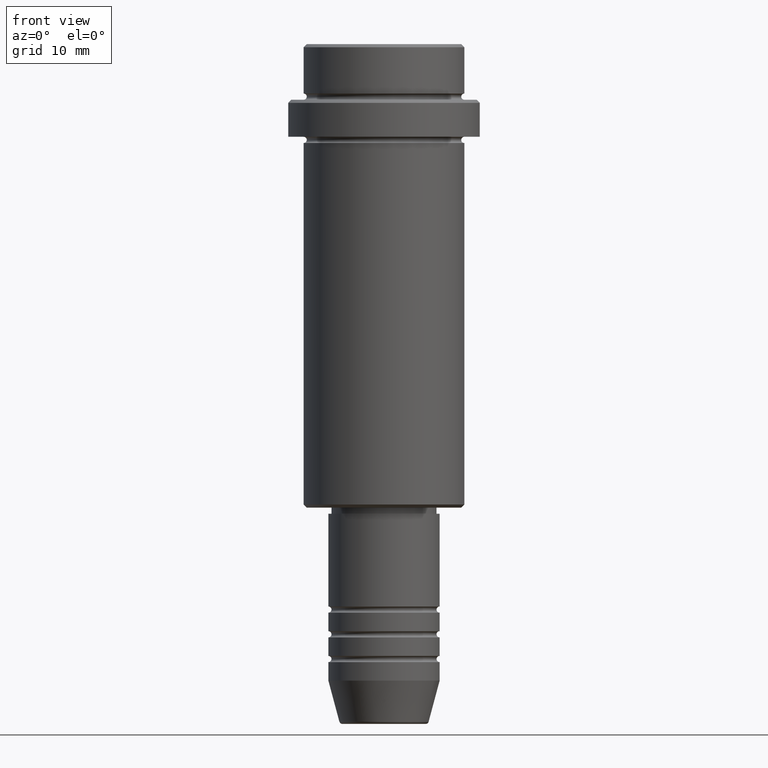
[diagram: clean part render]
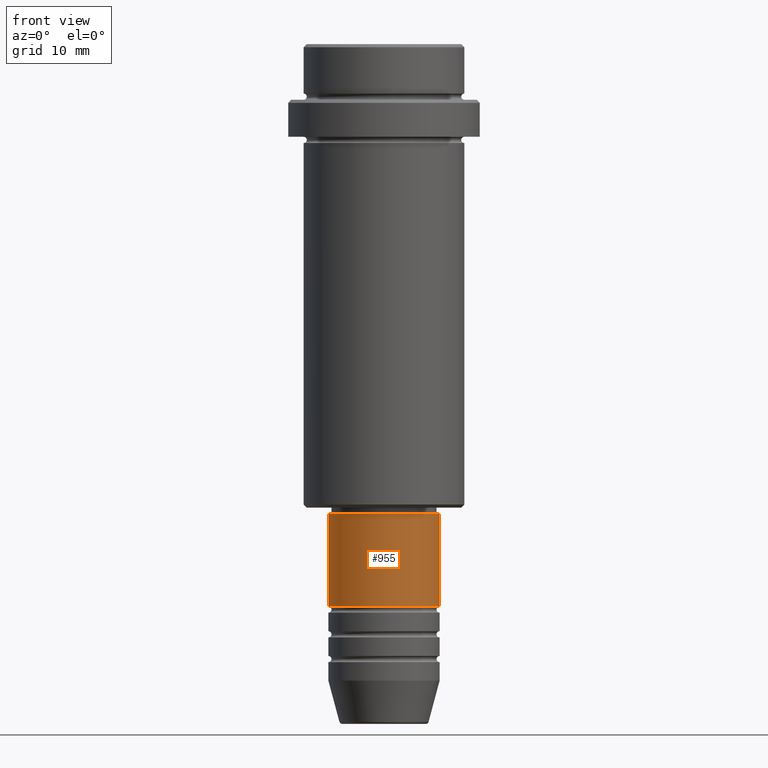
[diagram: same view with one face highlighted and labeled with its STEP entity id]
A machine part, front view. The second image highlights one B-rep face of the part: STEP entity #955.
In plain terms, the highlighted cylindrical surface (partial cylindrical patch) has radius 9 mm, axis along (-0, -0, 1).
Its self-contained STEP definition (entity closure, byte-faithful):
#51 = EDGE_CURVE ( 'NONE', #434, #1263, #91, .T. ) ;
#91 = CIRCLE ( 'NONE', #1049, 9.000000000000000000 ) ;
#103 = CARTESIAN_POINT ( 'NONE',  ( 0.000000000000000000, 0.000000000000000000, 0.000000000000000000 ) ) ;
#142 = CARTESIAN_POINT ( 'NONE',  ( 9.000000000000001776, 0.000000000000000000, -76.00000000000001421 ) ) ;
#165 = ORIENTED_EDGE ( 'NONE', *, *, #1303, .F. ) ;
#183 = CARTESIAN_POINT ( 'NONE',  ( -9.000000000000000000, 1.102182119232617714E-15, -90.99999999999988631 ) ) ;
#204 = VERTEX_POINT ( 'NONE', #1227 ) ;
#268 = VECTOR ( 'NONE', #736, 1000.000000000000000 ) ;
#311 = DIRECTION ( 'NONE',  ( 1.000000000000000000, 0.000000000000000000, 0.000000000000000000 ) ) ;
#398 = CARTESIAN_POINT ( 'NONE',  ( 9.000000000000000000, 0.000000000000000000, -90.99999999999988631 ) ) ;
#412 = VECTOR ( 'NONE', #1052, 1000.000000000000000 ) ;
#428 = DIRECTION ( 'NONE',  ( -0.000000000000000000, -0.000000000000000000, 1.000000000000000000 ) ) ;
#434 = VERTEX_POINT ( 'NONE', #183 ) ;
#436 = DIRECTION ( 'NONE',  ( -0.000000000000000000, -0.000000000000000000, 1.000000000000000000 ) ) ;
#437 = AXIS2_PLACEMENT_3D ( 'NONE', #542, #1004, #1325 ) ;
#447 = CARTESIAN_POINT ( 'NONE',  ( 0.000000000000000000, 0.000000000000000000, -90.99999999999988631 ) ) ;
#523 = LINE ( 'NONE', #949, #412 ) ;
#542 = CARTESIAN_POINT ( 'NONE',  ( 0.000000000000000000, 0.000000000000000000, -76.00000000000001421 ) ) ;
#608 = LINE ( 'NONE', #1156, #268 ) ;
#707 = AXIS2_PLACEMENT_3D ( 'NONE', #103, #428, #311 ) ;
#717 = ORIENTED_EDGE ( 'NONE', *, *, #1407, .F. ) ;
#736 = DIRECTION ( 'NONE',  ( -0.000000000000000000, -0.000000000000000000, 1.000000000000000000 ) ) ;
#776 = ORIENTED_EDGE ( 'NONE', *, *, #51, .T. ) ;
#799 = EDGE_LOOP ( 'NONE', ( #165, #776, #1353, #717 ) ) ;
#858 = EDGE_CURVE ( 'NONE', #1263, #945, #608, .T. ) ;
#945 = VERTEX_POINT ( 'NONE', #142 ) ;
#949 = CARTESIAN_POINT ( 'NONE',  ( -9.000000000000001776, 1.102182119232617911E-15, 0.000000000000000000 ) ) ;
#955 = ADVANCED_FACE ( 'NONE', ( #1221 ), #1415, .T. ) ;
#969 = DIRECTION ( 'NONE',  ( 1.000000000000000000, 0.000000000000000000, 0.000000000000000000 ) ) ;
#1004 = DIRECTION ( 'NONE',  ( -0.000000000000000000, -0.000000000000000000, 1.000000000000000000 ) ) ;
#1049 = AXIS2_PLACEMENT_3D ( 'NONE', #447, #436, #969 ) ;
#1052 = DIRECTION ( 'NONE',  ( -0.000000000000000000, -0.000000000000000000, 1.000000000000000000 ) ) ;
#1156 = CARTESIAN_POINT ( 'NONE',  ( 9.000000000000001776, 0.000000000000000000, 0.000000000000000000 ) ) ;
#1221 = FACE_OUTER_BOUND ( 'NONE', #799, .T. ) ;
#1227 = CARTESIAN_POINT ( 'NONE',  ( -9.000000000000001776, 1.102182119232617911E-15, -76.00000000000001421 ) ) ;
#1252 = CIRCLE ( 'NONE', #437, 9.000000000000001776 ) ;
#1263 = VERTEX_POINT ( 'NONE', #398 ) ;
#1303 = EDGE_CURVE ( 'NONE', #434, #204, #523, .T. ) ;
#1325 = DIRECTION ( 'NONE',  ( 1.000000000000000000, 0.000000000000000000, 0.000000000000000000 ) ) ;
#1353 = ORIENTED_EDGE ( 'NONE', *, *, #858, .T. ) ;
#1407 = EDGE_CURVE ( 'NONE', #204, #945, #1252, .T. ) ;
#1415 = CYLINDRICAL_SURFACE ( 'NONE', #707, 9.000000000000001776 ) ;